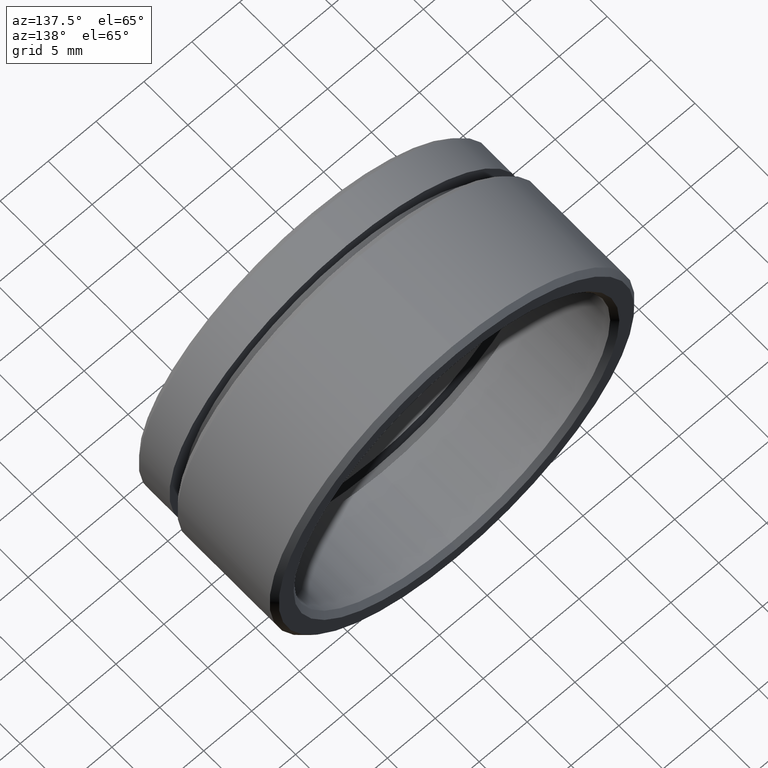
[diagram: clean part render]
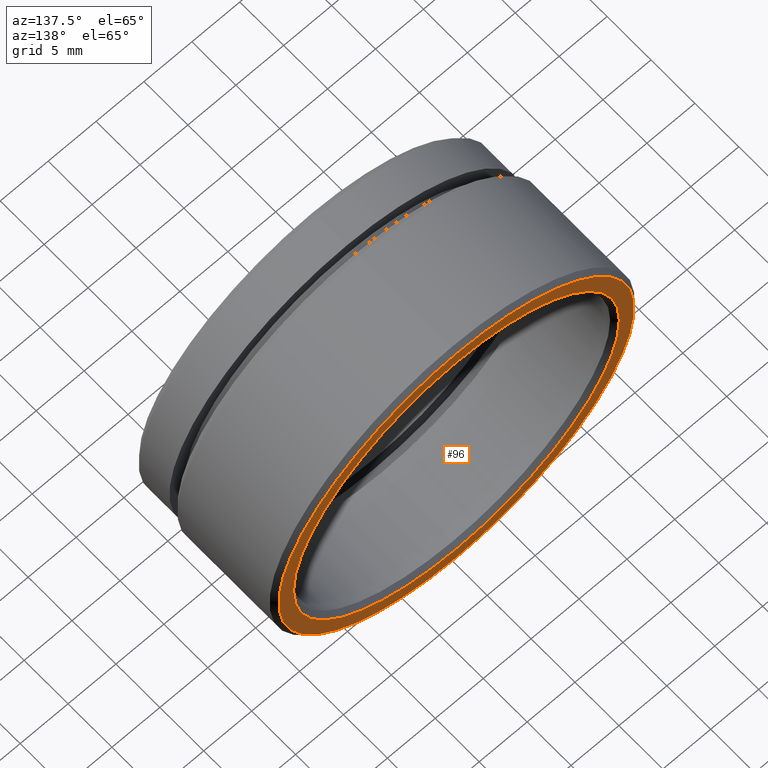
[diagram: same view with one face highlighted and labeled with its STEP entity id]
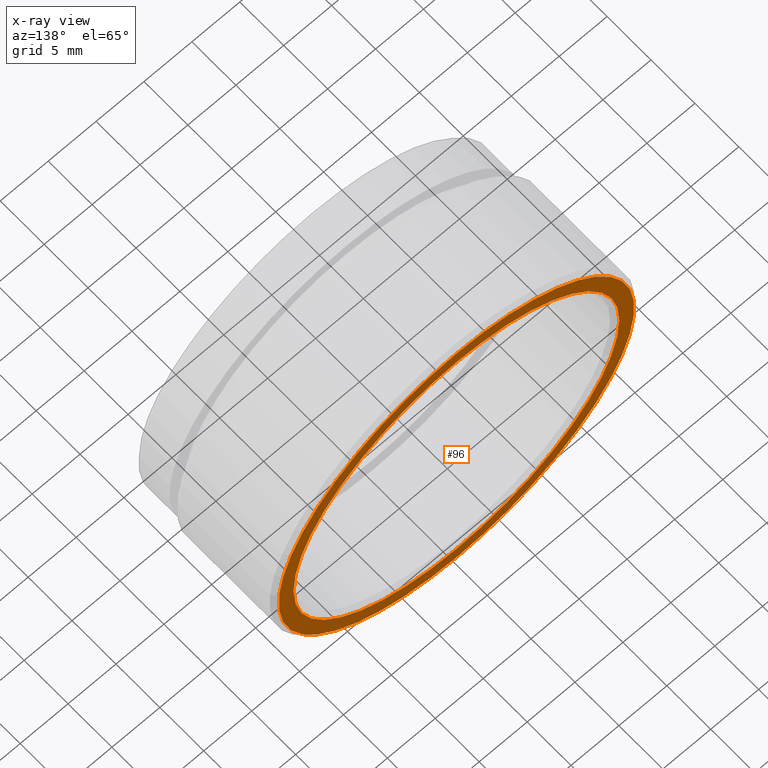
[diagram: x-ray of the same camera — body ghosted, the highlighted face saturated]
A machine part, auxiliary view. The second image highlights one B-rep face of the part: STEP entity #96.
The next image is the same camera in x-ray: the body ghosted, the highlighted face saturated — about 0% of this face is hidden behind the body in this view.
In plain terms, the highlighted planar face has unit normal (0, 1, 0).
Its self-contained STEP definition (entity closure, byte-faithful):
#26 = DIRECTION ( 'NONE',  ( 0.0000000000000000000, 1.000000000000000000, 0.0000000000000000000 ) ) ;
#96 = ADVANCED_FACE ( 'NONE', ( #224, #235 ), #700, .T. ) ;
#109 = DIRECTION ( 'NONE',  ( 0.0000000000000000000, 0.0000000000000000000, 1.000000000000000000 ) ) ;
#126 = EDGE_CURVE ( 'NONE', #164, #614, #416, .T. ) ;
#133 = ORIENTED_EDGE ( 'NONE', *, *, #165, .T. ) ;
#164 = VERTEX_POINT ( 'NONE', #361 ) ;
#165 = EDGE_CURVE ( 'NONE', #614, #164, #286, .T. ) ;
#181 = DIRECTION ( 'NONE',  ( -0.0000000000000000000, -1.000000000000000000, -0.0000000000000000000 ) ) ;
#182 = CARTESIAN_POINT ( 'NONE',  ( 0.0000000000000000000, 16.50000000000000000, 17.00000000000000400 ) ) ;
#184 = AXIS2_PLACEMENT_3D ( 'NONE', #806, #181, #109 ) ;
#203 = CIRCLE ( 'NONE', #184, 17.00000000000000400 ) ;
#210 = DIRECTION ( 'NONE',  ( 0.0000000000000000000, 1.000000000000000000, 0.0000000000000000000 ) ) ;
#211 = CARTESIAN_POINT ( 'NONE',  ( 2.081899558550500700E-015, 16.50000000000000000, -17.00000000000000400 ) ) ;
#224 = FACE_BOUND ( 'NONE', #738, .T. ) ;
#228 = EDGE_CURVE ( 'NONE', #593, #583, #203, .T. ) ;
#235 = FACE_OUTER_BOUND ( 'NONE', #526, .T. ) ;
#280 = DIRECTION ( 'NONE',  ( 0.0000000000000000000, 1.000000000000000000, 0.0000000000000000000 ) ) ;
#286 = CIRCLE ( 'NONE', #326, 18.55000000000000100 ) ;
#294 = ORIENTED_EDGE ( 'NONE', *, *, #228, .T. ) ;
#326 = AXIS2_PLACEMENT_3D ( 'NONE', #849, #210, #829 ) ;
#351 = CARTESIAN_POINT ( 'NONE',  ( 19.04999999999999700, 16.50000000000000000, 0.0000000000000000000 ) ) ;
#361 = CARTESIAN_POINT ( 'NONE',  ( 2.302335982397023900E-015, 16.50000000000000000, 18.55000000000000100 ) ) ;
#372 = CARTESIAN_POINT ( 'NONE',  ( 0.0000000000000000000, 16.50000000000000000, 0.0000000000000000000 ) ) ;
#377 = DIRECTION ( 'NONE',  ( -0.0000000000000000000, -1.000000000000000000, -0.0000000000000000000 ) ) ;
#379 = DIRECTION ( 'NONE',  ( 0.0000000000000000000, 0.0000000000000000000, 1.000000000000000000 ) ) ;
#383 = AXIS2_PLACEMENT_3D ( 'NONE', #662, #280, #766 ) ;
#404 = CIRCLE ( 'NONE', #654, 17.00000000000000400 ) ;
#413 = AXIS2_PLACEMENT_3D ( 'NONE', #351, #26, #674 ) ;
#416 = CIRCLE ( 'NONE', #383, 18.55000000000000100 ) ;
#439 = ORIENTED_EDGE ( 'NONE', *, *, #677, .T. ) ;
#497 = CARTESIAN_POINT ( 'NONE',  ( 0.0000000000000000000, 16.50000000000000000, -18.55000000000000100 ) ) ;
#526 = EDGE_LOOP ( 'NONE', ( #133, #618 ) ) ;
#583 = VERTEX_POINT ( 'NONE', #182 ) ;
#593 = VERTEX_POINT ( 'NONE', #211 ) ;
#614 = VERTEX_POINT ( 'NONE', #497 ) ;
#618 = ORIENTED_EDGE ( 'NONE', *, *, #126, .T. ) ;
#654 = AXIS2_PLACEMENT_3D ( 'NONE', #372, #377, #379 ) ;
#662 = CARTESIAN_POINT ( 'NONE',  ( 0.0000000000000000000, 16.50000000000000000, 0.0000000000000000000 ) ) ;
#674 = DIRECTION ( 'NONE',  ( 0.0000000000000000000, -0.0000000000000000000, 1.000000000000000000 ) ) ;
#677 = EDGE_CURVE ( 'NONE', #583, #593, #404, .T. ) ;
#700 = PLANE ( 'NONE',  #413 ) ;
#738 = EDGE_LOOP ( 'NONE', ( #439, #294 ) ) ;
#766 = DIRECTION ( 'NONE',  ( 0.0000000000000000000, 0.0000000000000000000, 1.000000000000000000 ) ) ;
#806 = CARTESIAN_POINT ( 'NONE',  ( 0.0000000000000000000, 16.50000000000000000, 0.0000000000000000000 ) ) ;
#829 = DIRECTION ( 'NONE',  ( 0.0000000000000000000, 0.0000000000000000000, 1.000000000000000000 ) ) ;
#849 = CARTESIAN_POINT ( 'NONE',  ( 0.0000000000000000000, 16.50000000000000000, 0.0000000000000000000 ) ) ;